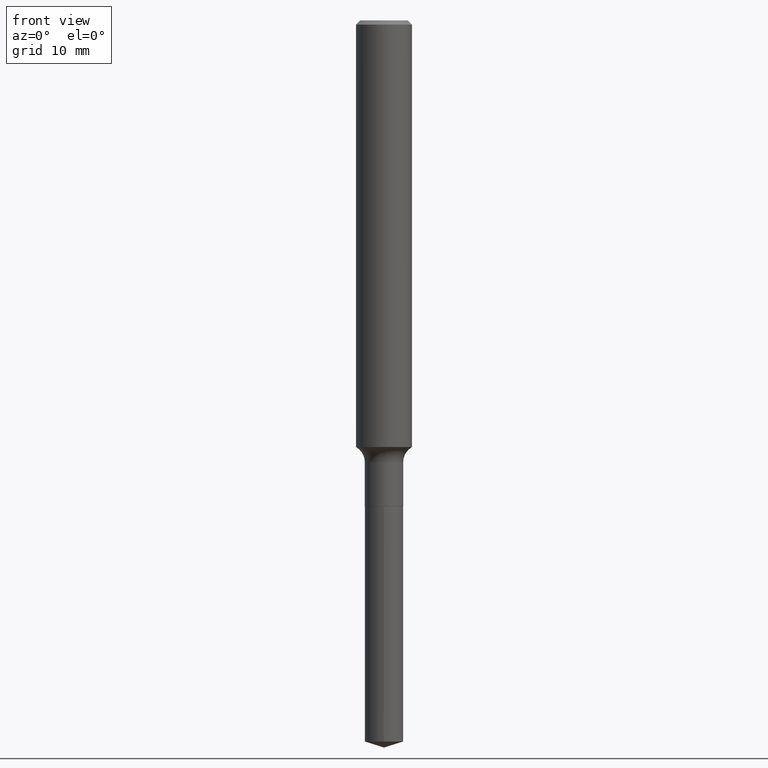
[diagram: clean part render]
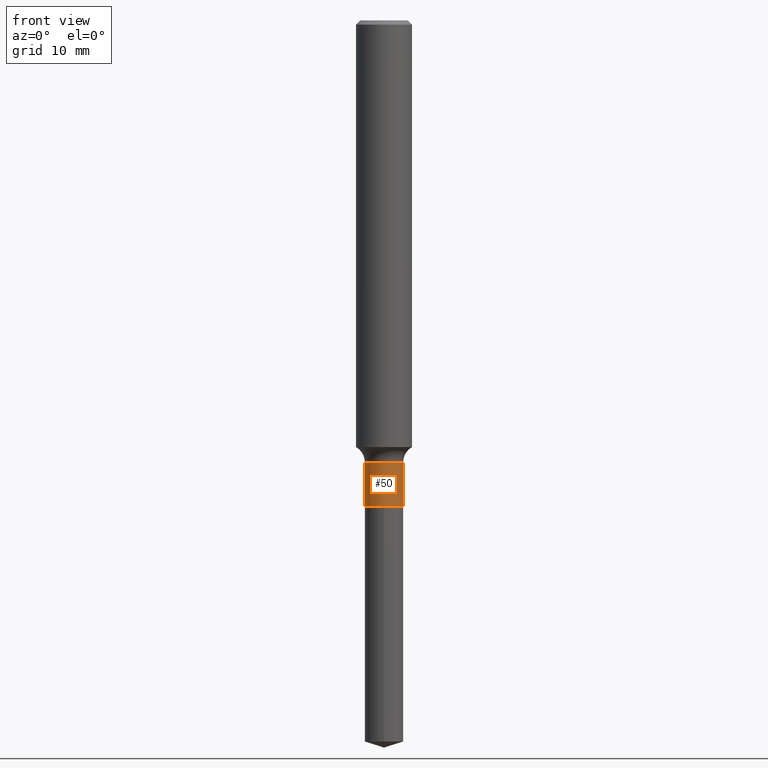
[diagram: same view with one face highlighted and labeled with its STEP entity id]
A machine part, front view. The second image highlights one B-rep face of the part: STEP entity #50.
In plain terms, the highlighted cylindrical surface (edge-blend (fillet) strip) has radius 2.1831 mm, axis along (-0, 0, 1).
Its self-contained STEP definition (entity closure, byte-faithful):
#3 = VERTEX_POINT ( 'NONE', #417 ) ;
#12 = CARTESIAN_POINT ( 'NONE',  ( 0.08595000000000001250, -8.181588221311139692E-15, -2.171399999999999775 ) ) ;
#28 = DIRECTION ( 'NONE',  ( -2.445468806185136597E-29, 3.491481338843145583E-15, 1.000000000000000000 ) ) ;
#30 = VECTOR ( 'NONE', #111, 39.37007874015748143 ) ;
#34 = EDGE_CURVE ( 'NONE', #95, #3, #189, .T. ) ;
#47 = EDGE_CURVE ( 'NONE', #254, #415, #446, .T. ) ;
#50 = ADVANCED_FACE ( 'NONE', ( #105 ), #69, .T. ) ;
#56 = EDGE_CURVE ( 'NONE', #3, #415, #175, .T. ) ;
#59 = EDGE_LOOP ( 'NONE', ( #481, #218, #434, #265 ) ) ;
#66 = CARTESIAN_POINT ( 'NONE',  ( -0.08595000000000001250, 6.107114813858061986E-16, -4.227824710074092290E-30 ) ) ;
#69 = CYLINDRICAL_SURFACE ( 'NONE', #476, 0.08595000000000001250 ) ;
#95 = VERTEX_POINT ( 'NONE', #161 ) ;
#102 = CARTESIAN_POINT ( 'NONE',  ( 0.08594999999999998475, -7.493068101291271863E-15, -1.974199999999999955 ) ) ;
#105 = FACE_OUTER_BOUND ( 'NONE', #59, .T. ) ;
#107 = DIRECTION ( 'NONE',  ( 1.000000000000000000, -6.982962677686259611E-15, 0.000000000000000000 ) ) ;
#108 = CARTESIAN_POINT ( 'NONE',  ( 0.000000000000000000, 0.000000000000000000, 0.000000000000000000 ) ) ;
#111 = DIRECTION ( 'NONE',  ( -2.445468806185136877E-29, 3.491481338843145188E-15, 1.000000000000000000 ) ) ;
#161 = CARTESIAN_POINT ( 'NONE',  ( -0.08595000000000001250, -6.626431037768265648E-15, -2.171399999999999775 ) ) ;
#175 = CIRCLE ( 'NONE', #305, 0.08594999999999998475 ) ;
#178 = AXIS2_PLACEMENT_3D ( 'NONE', #409, #28, #107 ) ;
#189 = LINE ( 'NONE', #66, #30 ) ;
#218 = ORIENTED_EDGE ( 'NONE', *, *, #444, .T. ) ;
#224 = DIRECTION ( 'NONE',  ( 1.000000000000000000, -6.982962677686265922E-15, 4.876176775795935793E-29 ) ) ;
#227 = DIRECTION ( 'NONE',  ( -2.445468806185136597E-29, 3.491481338843145583E-15, 1.000000000000000000 ) ) ;
#254 = VERTEX_POINT ( 'NONE', #12 ) ;
#262 = DIRECTION ( 'NONE',  ( -2.445468806185136877E-29, 3.491481338843145188E-15, 1.000000000000000000 ) ) ;
#265 = ORIENTED_EDGE ( 'NONE', *, *, #56, .F. ) ;
#269 = CARTESIAN_POINT ( 'NONE',  ( 0.08595000000000001250, -6.001856421471346206E-16, 4.191073938796607240E-30 ) ) ;
#305 = AXIS2_PLACEMENT_3D ( 'NONE', #488, #227, #375 ) ;
#312 = VECTOR ( 'NONE', #262, 39.37007874015748143 ) ;
#375 = DIRECTION ( 'NONE',  ( 1.000000000000000000, -6.982962677686261977E-15, 0.000000000000000000 ) ) ;
#409 = CARTESIAN_POINT ( 'NONE',  ( 5.310090965750405721E-29, -7.581402579164005466E-15, -2.171399999999999775 ) ) ;
#414 = DIRECTION ( 'NONE',  ( -2.445468806185136597E-29, 3.491481338843145583E-15, 1.000000000000000000 ) ) ;
#415 = VERTEX_POINT ( 'NONE', #102 ) ;
#417 = CARTESIAN_POINT ( 'NONE',  ( -0.08594999999999998475, -6.626431037768265648E-15, -1.974199999999999955 ) ) ;
#434 = ORIENTED_EDGE ( 'NONE', *, *, #47, .T. ) ;
#444 = EDGE_CURVE ( 'NONE', #95, #254, #485, .T. ) ;
#446 = LINE ( 'NONE', #269, #312 ) ;
#476 = AXIS2_PLACEMENT_3D ( 'NONE', #108, #414, #224 ) ;
#481 = ORIENTED_EDGE ( 'NONE', *, *, #34, .F. ) ;
#485 = CIRCLE ( 'NONE', #178, 0.08595000000000001250 ) ;
#488 = CARTESIAN_POINT ( 'NONE',  ( 4.827844517170696296E-29, -6.892882459144138426E-15, -1.974199999999999955 ) ) ;